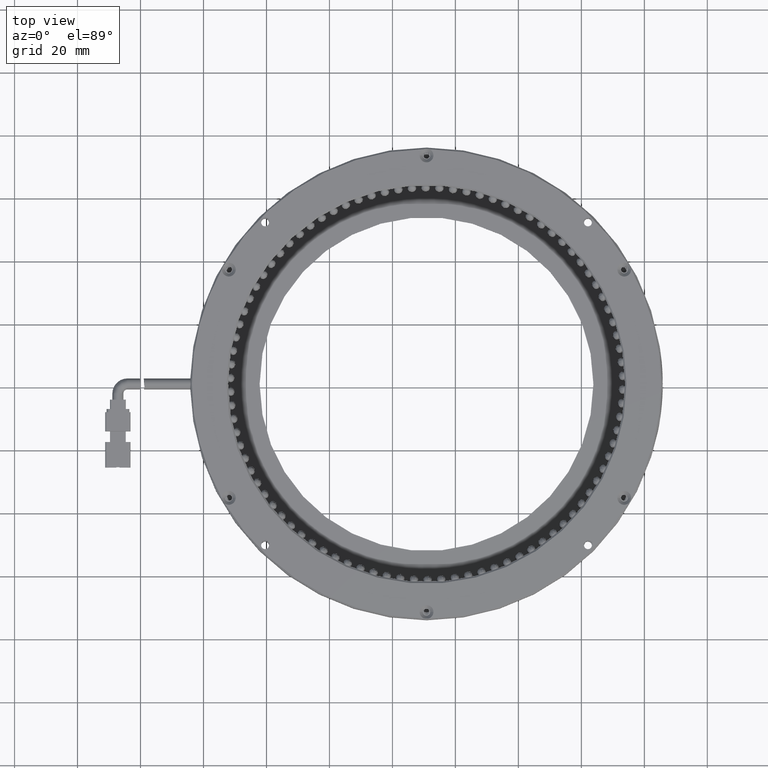
[diagram: clean part render]
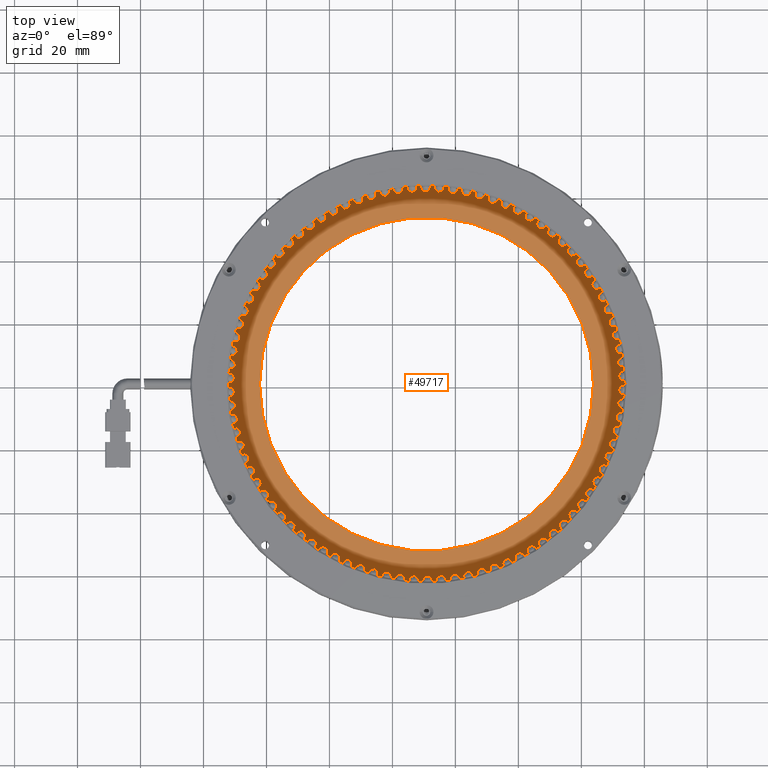
[diagram: same view with one face highlighted and labeled with its STEP entity id]
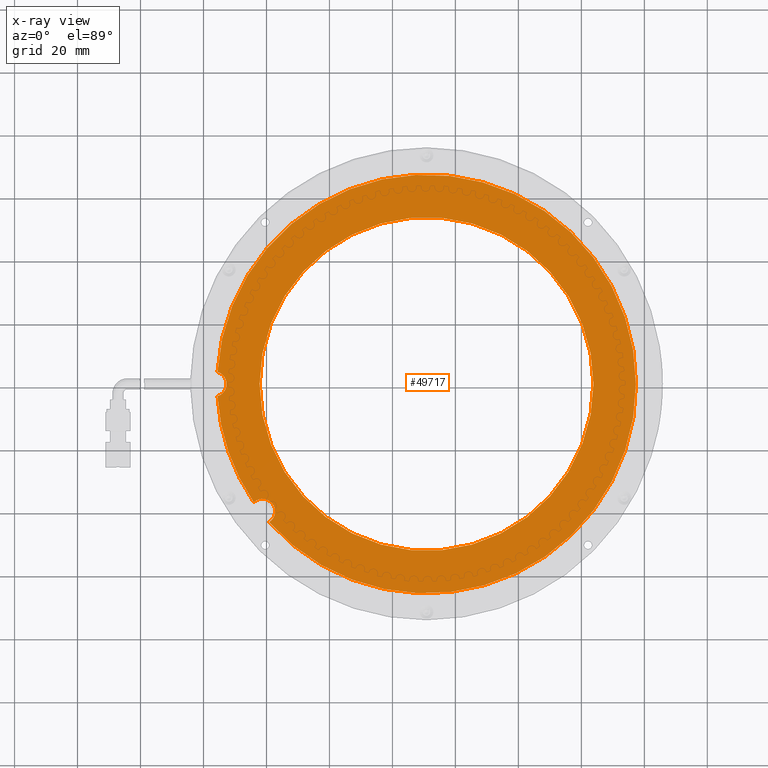
[diagram: x-ray of the same camera — body ghosted, the highlighted face saturated]
A machine part, top view. The second image highlights one B-rep face of the part: STEP entity #49717.
The next image is the same camera in x-ray: the body ghosted, the highlighted face saturated — about 0% of this face is hidden behind the body in this view.
In plain terms, the highlighted planar face has unit normal (0, 0, 1).
Its self-contained STEP definition (entity closure, byte-faithful):
#34 = ORIENTED_EDGE ( 'NONE', *, *, #4866, .T. ) ;
#324 = CARTESIAN_POINT ( 'NONE',  ( 10.82239847715735200, 1.095939086294420100, -1.500000000000062800 ) ) ;
#2794 = CARTESIAN_POINT ( 'NONE',  ( -42.17760152284265000, 1.095939086294420100, -1.500000000000062800 ) ) ;
#3323 = EDGE_LOOP ( 'NONE', ( #14096, #51339, #34, #30142, #59006, #45580, #38332 ) ) ;
#3644 = EDGE_LOOP ( 'NONE', ( #28130, #13417 ) ) ;
#4402 = CARTESIAN_POINT ( 'NONE',  ( -56.67760152284265000, 1.095939086294420100, -1.500000000000062800 ) ) ;
#4465 = VERTEX_POINT ( 'NONE', #24911 ) ;
#4866 = EDGE_CURVE ( 'NONE', #8617, #46540, #13593, .T. ) ;
#4947 = CARTESIAN_POINT ( 'NONE',  ( 77.32239847715735000, 1.095939086294420100, -1.500000000000062800 ) ) ;
#5721 = CIRCLE ( 'NONE', #34508, 66.50000000000000000 ) ;
#6397 = DIRECTION ( 'NONE',  ( 1.000000000000000000, 0.0000000000000000000, 0.0000000000000000000 ) ) ;
#6615 = CIRCLE ( 'NONE', #73288, 53.00000000000000700 ) ;
#8617 = VERTEX_POINT ( 'NONE', #13167 ) ;
#10520 = DIRECTION ( 'NONE',  ( 1.000000000000000000, 3.577867169202161500E-015, 0.0000000000000000000 ) ) ;
#10819 = CARTESIAN_POINT ( 'NONE',  ( -39.15671482136050200, -42.77134067771552800, -1.500000000000062800 ) ) ;
#13167 = CARTESIAN_POINT ( 'NONE',  ( -37.26175405580934100, -39.37004536248179000, -1.500000000000062800 ) ) ;
#13417 = ORIENTED_EDGE ( 'NONE', *, *, #17524, .T. ) ;
#13593 = CIRCLE ( 'NONE', #75706, 4.000000000000010700 ) ;
#13838 = CARTESIAN_POINT ( 'NONE',  ( -55.56649041173153600, 4.938520523136835600, -1.500000000000062800 ) ) ;
#14096 = ORIENTED_EDGE ( 'NONE', *, *, #73695, .T. ) ;
#15136 = CIRCLE ( 'NONE', #40181, 66.50000000000000000 ) ;
#16106 = EDGE_CURVE ( 'NONE', #21036, #19951, #71761, .T. ) ;
#17524 = EDGE_CURVE ( 'NONE', #38920, #46877, #34248, .T. ) ;
#17529 = VERTEX_POINT ( 'NONE', #17846 ) ;
#17593 = CARTESIAN_POINT ( 'NONE',  ( 10.82239847715735200, 1.095939086294420100, -1.500000000000062800 ) ) ;
#17846 = CARTESIAN_POINT ( 'NONE',  ( -44.03720466399818900, -36.48961589424188600, -1.500000000000062800 ) ) ;
#19835 = DIRECTION ( 'NONE',  ( 0.0000000000000000000, 0.0000000000000000000, -1.000000000000000000 ) ) ;
#19951 = VERTEX_POINT ( 'NONE', #20393 ) ;
#20393 = CARTESIAN_POINT ( 'NONE',  ( -52.67760152284265000, 1.095939086294420100, -1.500000000000062800 ) ) ;
#20480 = CARTESIAN_POINT ( 'NONE',  ( 10.82239847715735200, 1.095939086294420100, -1.500000000000062800 ) ) ;
#20867 = EDGE_CURVE ( 'NONE', #46540, #21301, #5721, .T. ) ;
#21036 = VERTEX_POINT ( 'NONE', #13838 ) ;
#21301 = VERTEX_POINT ( 'NONE', #4947 ) ;
#21480 = EDGE_CURVE ( 'NONE', #46877, #38920, #6615, .T. ) ;
#23687 = DIRECTION ( 'NONE',  ( -1.000000000000000000, 0.0000000000000000000, 0.0000000000000000000 ) ) ;
#24911 = CARTESIAN_POINT ( 'NONE',  ( -55.56649041173153600, -2.746642350547932000, -1.500000000000062800 ) ) ;
#26168 = DIRECTION ( 'NONE',  ( 0.0000000000000000000, 0.0000000000000000000, 1.000000000000000000 ) ) ;
#26601 = DIRECTION ( 'NONE',  ( 1.000000000000000000, 0.0000000000000000000, 0.0000000000000000000 ) ) ;
#28130 = ORIENTED_EDGE ( 'NONE', *, *, #21480, .T. ) ;
#28968 = FACE_OUTER_BOUND ( 'NONE', #3323, .T. ) ;
#30142 = ORIENTED_EDGE ( 'NONE', *, *, #20867, .T. ) ;
#30975 = DIRECTION ( 'NONE',  ( 0.0000000000000000000, 0.0000000000000000000, -1.000000000000000000 ) ) ;
#31904 = CARTESIAN_POINT ( 'NONE',  ( 10.82239847715735200, 1.095939086294420100, -1.500000000000062800 ) ) ;
#32037 = AXIS2_PLACEMENT_3D ( 'NONE', #56301, #19835, #62464 ) ;
#32117 = EDGE_CURVE ( 'NONE', #17529, #8617, #53043, .T. ) ;
#32518 = CARTESIAN_POINT ( 'NONE',  ( -41.26175405580935500, -39.37004536248179000, -1.500000000000062800 ) ) ;
#33624 = CARTESIAN_POINT ( 'NONE',  ( 10.82239847715735200, 1.095939086294420100, -1.500000000000062800 ) ) ;
#34248 = CIRCLE ( 'NONE', #53136, 53.00000000000000700 ) ;
#34508 = AXIS2_PLACEMENT_3D ( 'NONE', #324, #42861, #6397 ) ;
#38014 = DIRECTION ( 'NONE',  ( -1.000000000000000000, 0.0000000000000000000, 0.0000000000000000000 ) ) ;
#38332 = ORIENTED_EDGE ( 'NONE', *, *, #44460, .T. ) ;
#38623 = DIRECTION ( 'NONE',  ( 1.000000000000000000, 1.734723475976802600E-015, 0.0000000000000000000 ) ) ;
#38920 = VERTEX_POINT ( 'NONE', #58051 ) ;
#39729 = DIRECTION ( 'NONE',  ( 1.000000000000000000, 0.0000000000000000000, 0.0000000000000000000 ) ) ;
#40181 = AXIS2_PLACEMENT_3D ( 'NONE', #20480, #63093, #26601 ) ;
#42861 = DIRECTION ( 'NONE',  ( -0.0000000000000000000, -0.0000000000000000000, 1.000000000000000000 ) ) ;
#44460 = EDGE_CURVE ( 'NONE', #19951, #4465, #58727, .T. ) ;
#45580 = ORIENTED_EDGE ( 'NONE', *, *, #16106, .T. ) ;
#46069 = AXIS2_PLACEMENT_3D ( 'NONE', #33624, #76127, #39729 ) ;
#46540 = VERTEX_POINT ( 'NONE', #10819 ) ;
#46825 = AXIS2_PLACEMENT_3D ( 'NONE', #4402, #47040, #10520 ) ;
#46877 = VERTEX_POINT ( 'NONE', #2794 ) ;
#47040 = DIRECTION ( 'NONE',  ( 0.0000000000000000000, 0.0000000000000000000, -1.000000000000000000 ) ) ;
#48327 = EDGE_CURVE ( 'NONE', #21301, #21036, #76078, .T. ) ;
#49717 = ADVANCED_FACE ( 'NONE', ( #61377, #28968 ), #68200, .T. ) ;
#51339 = ORIENTED_EDGE ( 'NONE', *, *, #32117, .T. ) ;
#53043 = CIRCLE ( 'NONE', #70399, 4.000000000000010700 ) ;
#53136 = AXIS2_PLACEMENT_3D ( 'NONE', #17593, #60131, #23687 ) ;
#54923 = AXIS2_PLACEMENT_3D ( 'NONE', #62668, #26168, #68715 ) ;
#56301 = CARTESIAN_POINT ( 'NONE',  ( -56.67760152284265000, 1.095939086294420100, -1.500000000000062800 ) ) ;
#58051 = CARTESIAN_POINT ( 'NONE',  ( 63.82239847715735700, 1.095939086294426700, -1.500000000000062800 ) ) ;
#58727 = CIRCLE ( 'NONE', #32037, 4.000000000000003600 ) ;
#59006 = ORIENTED_EDGE ( 'NONE', *, *, #48327, .T. ) ;
#60131 = DIRECTION ( 'NONE',  ( -0.0000000000000000000, -0.0000000000000000000, -1.000000000000000000 ) ) ;
#61377 = FACE_BOUND ( 'NONE', #3644, .T. ) ;
#62464 = DIRECTION ( 'NONE',  ( 1.000000000000000000, 0.0000000000000000000, 0.0000000000000000000 ) ) ;
#62668 = CARTESIAN_POINT ( 'NONE',  ( 10.82239847715735200, 1.095939086294420100, -1.500000000000062800 ) ) ;
#63093 = DIRECTION ( 'NONE',  ( -0.0000000000000000000, -0.0000000000000000000, 1.000000000000000000 ) ) ;
#67361 = CARTESIAN_POINT ( 'NONE',  ( -41.26175405580935500, -39.37004536248179000, -1.500000000000062800 ) ) ;
#68200 = PLANE ( 'NONE',  #54923 ) ;
#68715 = DIRECTION ( 'NONE',  ( 1.000000000000000000, 0.0000000000000000000, -0.0000000000000000000 ) ) ;
#70399 = AXIS2_PLACEMENT_3D ( 'NONE', #32518, #75041, #38623 ) ;
#71761 = CIRCLE ( 'NONE', #46825, 4.000000000000003600 ) ;
#73288 = AXIS2_PLACEMENT_3D ( 'NONE', #31904, #74449, #38014 ) ;
#73486 = DIRECTION ( 'NONE',  ( 1.000000000000000000, 0.0000000000000000000, 0.0000000000000000000 ) ) ;
#73695 = EDGE_CURVE ( 'NONE', #4465, #17529, #15136, .T. ) ;
#74449 = DIRECTION ( 'NONE',  ( -0.0000000000000000000, -0.0000000000000000000, -1.000000000000000000 ) ) ;
#75041 = DIRECTION ( 'NONE',  ( 0.0000000000000000000, 0.0000000000000000000, -1.000000000000000000 ) ) ;
#75706 = AXIS2_PLACEMENT_3D ( 'NONE', #67361, #30975, #73486 ) ;
#76078 = CIRCLE ( 'NONE', #46069, 66.50000000000000000 ) ;
#76127 = DIRECTION ( 'NONE',  ( -0.0000000000000000000, -0.0000000000000000000, 1.000000000000000000 ) ) ;